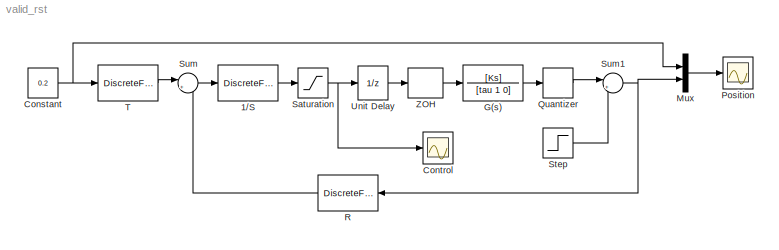
MODEL valid_rst
KIND model
BLOCK [DiscreteFilter] 1//S
  Denominator = S
  InputPortMap = u0
  Ports = [1, 1]
  SID = 1
  SampleTime = Te
BLOCK [Constant] Constant
  SID = 3
  Value = 0.2
BLOCK [Scope] Control
  Floating = off
  NumInputPorts = 1
  Ports = [1]
  SID = 2
  ScopeSpecificationString = Simulink.scopes.TimeScopeBlockCfg('CurrentConfiguration', extmgr.ConfigurationSet(extmgr.Configuration('Core','General UI',true),extmgr.Configuration('Core','Source UI',true),extmgr.Configuration('Sources','WiredSimulink',true,'DataLoggingVariableName','ScopeData1','DataLoggingSaveFormat','StructureWithTime','DataLoggingLimitDataPoints',true,'DataLoggingDecimation','1','DataLoggingDecimateData',tr...<+955ch>
BLOCK [TransferFcn] G(s)
  Denominator = [tau 1 0]
  Numerator = [Ks]
  SID = 13
BLOCK [Mux] Mux
  DisplayOption = bar
  Inputs = 2
  Ports = [2, 1]
  SID = 4
BLOCK [Scope] Position
  Floating = off
  NumInputPorts = 1
  Ports = [1]
  SID = 8
  ScopeSpecificationString = Simulink.scopes.TimeScopeBlockCfg('CurrentConfiguration', extmgr.ConfigurationSet(extmgr.Configuration('Core','General UI',true),extmgr.Configuration('Core','Source UI',true),extmgr.Configuration('Sources','WiredSimulink',true,'DataLoggingSaveFormat','StructureWithTime','DataLoggingLimitDataPoints',true,'DataLoggingDecimation','1','DataLoggingDecimateData',true),extmgr.Configuration('Visuals','Tim...<+917ch>
BLOCK [Quantizer] Quantizer
  QuantizationInterval = 1/180*pi
  SID = 5
BLOCK [DiscreteFilter] R
  Denominator = [1]
  InputPortMap = u0
  Numerator = R
  Ports = [1, 1]
  SID = 6
  SampleTime = Te
BLOCK [Saturate] Saturation
  InputPortMap = u0
  LowerLimit = -100
  Ports = [1, 1]
  SID = 7
  UpperLimit = 100
BLOCK [Step] Step
  After = 0.1
  SID = 9
  SampleTime = 0
  Time = 0.5
BLOCK [Sum] Sum
  IconShape = round
  InputSameDT = off
  Inputs = |+-
  OutDataTypeStr = Inherit: Inherit via internal rule
  Ports = [2, 1]
  SID = 10
  SaturateOnIntegerOverflow = off
BLOCK [Sum] Sum1
  IconShape = round
  InputSameDT = off
  Inputs = |++
  OutDataTypeStr = Inherit: Inherit via internal rule
  Ports = [2, 1]
  SID = 11
  SaturateOnIntegerOverflow = off
BLOCK [DiscreteFilter] T
  Denominator = [1]
  InputPortMap = u0
  Numerator = T
  Ports = [1, 1]
  SID = 12
  SampleTime = Te
BLOCK [UnitDelay] Unit Delay
  InputProcessing = Elements as channels (sample based)
  SID = 15
  SampleTime = -1
BLOCK [ZeroOrderHold] ZOH
  SID = 14
  SampleTime = Te
LINE 1//S:1 -> Saturation:1
NET Constant:1 -> Mux:1, T:1
LINE G(s):1 -> Quantizer:1
LINE Mux:1 -> Position:1
LINE Quantizer:1 -> Sum1:1
LINE R:1 -> Sum:2
NET Saturation:1 -> Control:1, Unit Delay:1
LINE Step:1 -> Sum1:2
NET Sum1:1 -> Mux:2, R:1
LINE Sum:1 -> 1//S:1
LINE T:1 -> Sum:1
LINE Unit Delay:1 -> ZOH:1
LINE ZOH:1 -> G(s):1
note: NET lines group one-source signal fan-out (src -> all destinations, sorted); 1:1 wires keep LINE
